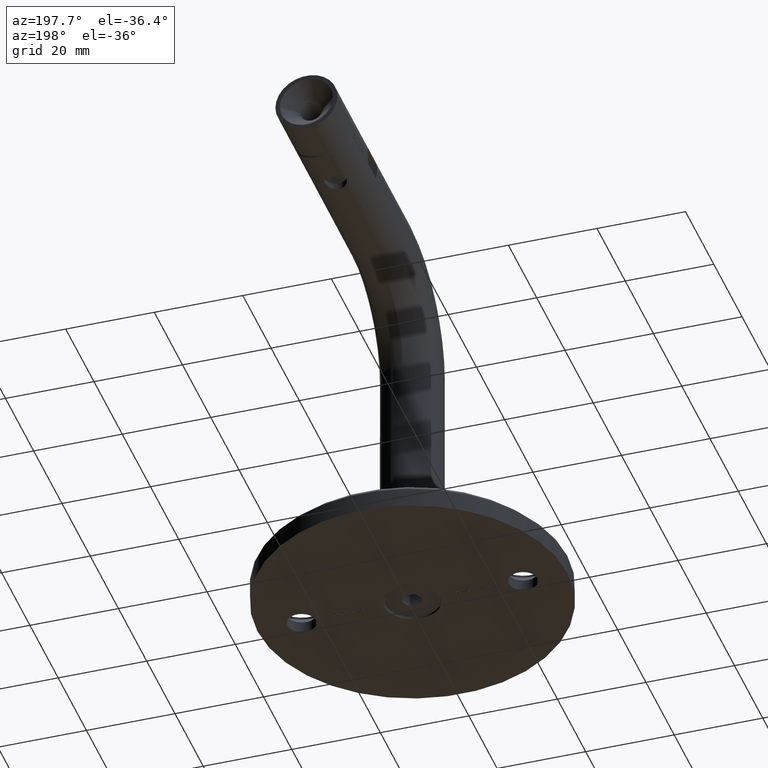
[diagram: clean part render]
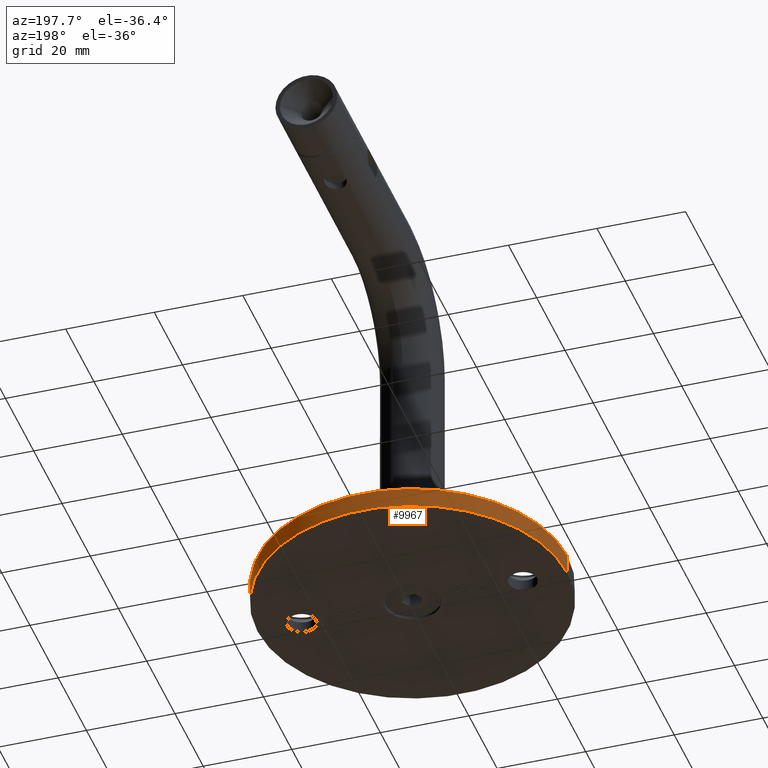
[diagram: same view with one face highlighted and labeled with its STEP entity id]
A machine part, auxiliary view. The second image highlights one B-rep face of the part: STEP entity #9967.
In plain terms, the highlighted cylindrical surface (partial cylindrical patch) has radius 35 mm, axis along (-0, -0, -1).
Its self-contained STEP definition (entity closure, byte-faithful):
#1258 = CARTESIAN_POINT ( 'NONE',  ( 34.99999999999999289, 4.286263797015735707E-15, 0.000000000000000000 ) ) ;
#1363 = VERTEX_POINT ( 'NONE', #16080 ) ;
#1458 = CARTESIAN_POINT ( 'NONE',  ( 0.000000000000000000, 0.000000000000000000, 6.000000000000000000 ) ) ;
#1604 = DIRECTION ( 'NONE',  ( -0.000000000000000000, -0.000000000000000000, -1.000000000000000000 ) ) ;
#2022 = VERTEX_POINT ( 'NONE', #16126 ) ;
#3221 = VERTEX_POINT ( 'NONE', #12650 ) ;
#3290 = EDGE_CURVE ( 'NONE', #2022, #1363, #16429, .T. ) ;
#4861 = CARTESIAN_POINT ( 'NONE',  ( 0.000000000000000000, 0.000000000000000000, 0.000000000000000000 ) ) ;
#5434 = VECTOR ( 'NONE', #6095, 1000.000000000000000 ) ;
#6095 = DIRECTION ( 'NONE',  ( -0.000000000000000000, -0.000000000000000000, -1.000000000000000000 ) ) ;
#6328 = DIRECTION ( 'NONE',  ( 1.000000000000000000, 0.000000000000000000, 0.000000000000000000 ) ) ;
#6855 = EDGE_CURVE ( 'NONE', #3221, #14686, #9962, .T. ) ;
#6949 = CYLINDRICAL_SURFACE ( 'NONE', #14868, 34.99999999999999289 ) ;
#7009 = AXIS2_PLACEMENT_3D ( 'NONE', #19514, #10954, #11034 ) ;
#8675 = CIRCLE ( 'NONE', #7009, 34.99999999999999289 ) ;
#9962 = LINE ( 'NONE', #16260, #17151 ) ;
#9967 = ADVANCED_FACE ( 'NONE', ( #12082 ), #6949, .T. ) ;
#10299 = CIRCLE ( 'NONE', #17414, 34.99999999999999289 ) ;
#10494 = ORIENTED_EDGE ( 'NONE', *, *, #19791, .T. ) ;
#10954 = DIRECTION ( 'NONE',  ( 0.000000000000000000, 0.000000000000000000, -1.000000000000000000 ) ) ;
#11034 = DIRECTION ( 'NONE',  ( 1.000000000000000000, 0.000000000000000000, 0.000000000000000000 ) ) ;
#11276 = DIRECTION ( 'NONE',  ( -0.000000000000000000, -0.000000000000000000, -1.000000000000000000 ) ) ;
#12082 = FACE_OUTER_BOUND ( 'NONE', #18929, .T. ) ;
#12650 = CARTESIAN_POINT ( 'NONE',  ( 34.99999999999999289, 4.286263797015735707E-15, 4.500000000000019540 ) ) ;
#12666 = ORIENTED_EDGE ( 'NONE', *, *, #6855, .T. ) ;
#13644 = ORIENTED_EDGE ( 'NONE', *, *, #3290, .F. ) ;
#14686 = VERTEX_POINT ( 'NONE', #1258 ) ;
#14868 = AXIS2_PLACEMENT_3D ( 'NONE', #1458, #1604, #15292 ) ;
#14960 = DIRECTION ( 'NONE',  ( 0.000000000000000000, 0.000000000000000000, 1.000000000000000000 ) ) ;
#15292 = DIRECTION ( 'NONE',  ( -1.000000000000000000, 0.000000000000000000, 0.000000000000000000 ) ) ;
#16080 = CARTESIAN_POINT ( 'NONE',  ( -34.99999999999999289, 0.000000000000000000, 0.000000000000000000 ) ) ;
#16126 = CARTESIAN_POINT ( 'NONE',  ( -34.99999999999999289, 0.000000000000000000, 4.500000000000019540 ) ) ;
#16260 = CARTESIAN_POINT ( 'NONE',  ( 34.99999999999999289, 4.286263797015735707E-15, 6.000000000000000000 ) ) ;
#16366 = CARTESIAN_POINT ( 'NONE',  ( -34.99999999999999289, 0.000000000000000000, 6.000000000000000000 ) ) ;
#16429 = LINE ( 'NONE', #16366, #5434 ) ;
#17151 = VECTOR ( 'NONE', #11276, 1000.000000000000000 ) ;
#17414 = AXIS2_PLACEMENT_3D ( 'NONE', #4861, #14960, #6328 ) ;
#18739 = EDGE_CURVE ( 'NONE', #2022, #3221, #8675, .T. ) ;
#18929 = EDGE_LOOP ( 'NONE', ( #20348, #12666, #10494, #13644 ) ) ;
#19514 = CARTESIAN_POINT ( 'NONE',  ( 0.000000000000000000, 0.000000000000000000, 4.500000000000019540 ) ) ;
#19791 = EDGE_CURVE ( 'NONE', #14686, #1363, #10299, .T. ) ;
#20348 = ORIENTED_EDGE ( 'NONE', *, *, #18739, .T. ) ;